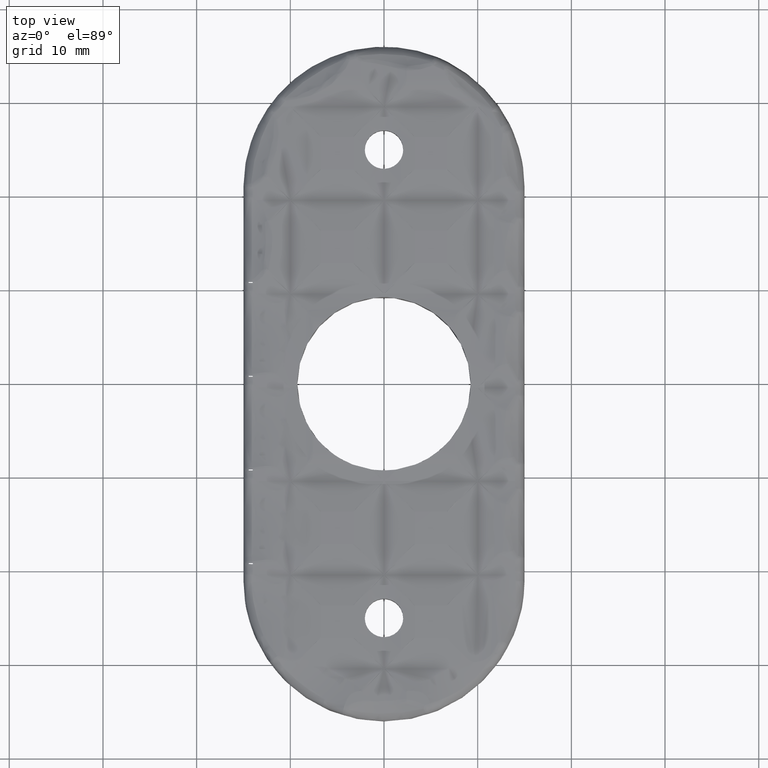
[diagram: clean part render]
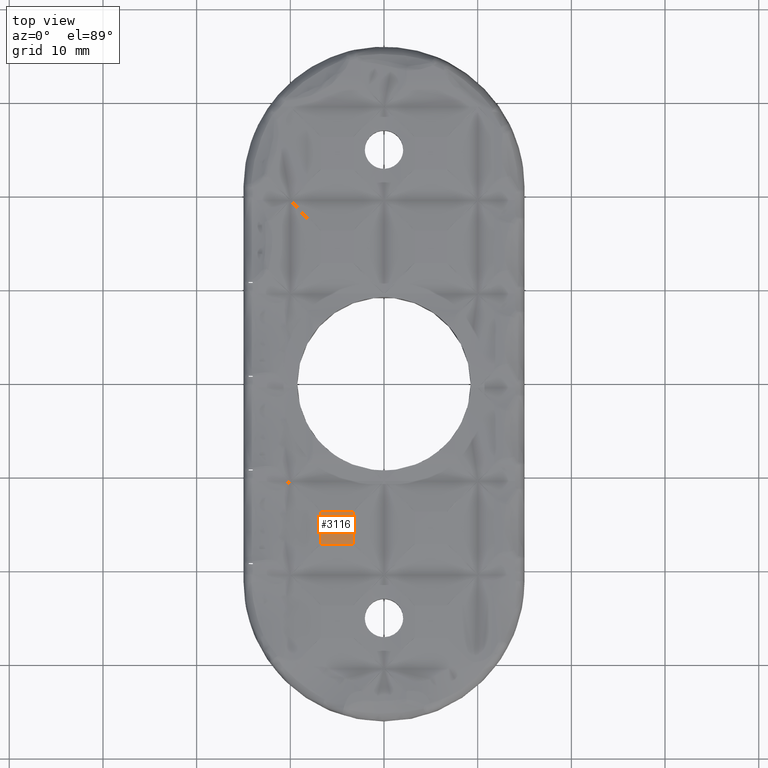
[diagram: same view with one face highlighted and labeled with its STEP entity id]
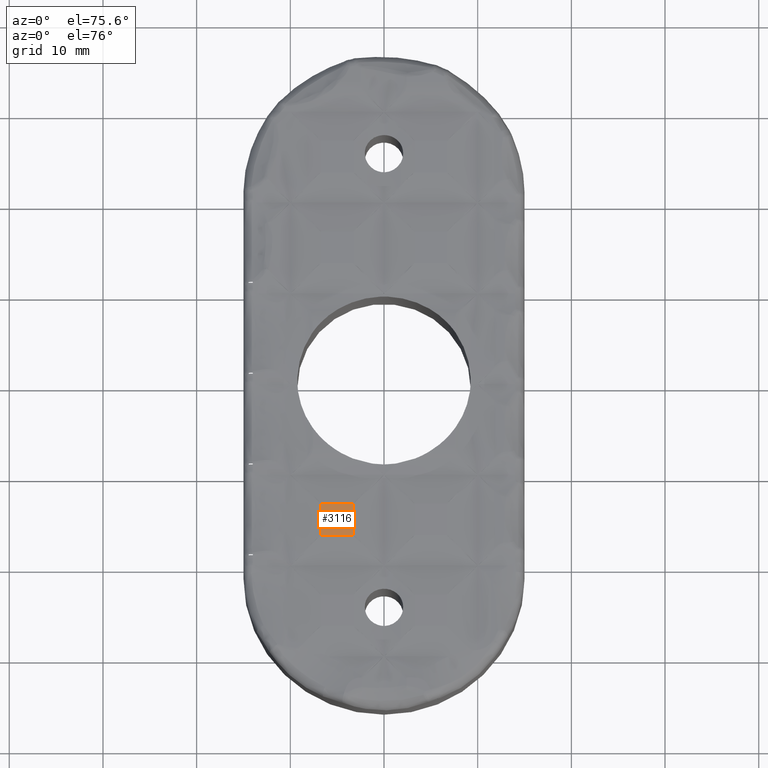
[diagram: same view with one face highlighted and labeled with its STEP entity id]
A machine part, top view. The second image highlights one B-rep face of the part: STEP entity #3116.
A second angle (auxiliary view) of the same face is appended — the face is thin or edge-on in the first view.
In plain terms, the highlighted planar face has unit normal (0, 0, 1).
Its self-contained STEP definition (entity closure, byte-faithful):
#908 = ORIENTED_EDGE ( 'NONE', *, *, #12815, .T. ) ;
#2133 = EDGE_LOOP ( 'NONE', ( #908, #15748, #8951, #20033 ) ) ;
#2752 = DIRECTION ( 'NONE',  ( 1.000000000000000000, 0.0000000000000000000, -0.0000000000000000000 ) ) ;
#3116 = ADVANCED_FACE ( 'NONE', ( #18883 ), #13587, .T. ) ;
#3199 = DIRECTION ( 'NONE',  ( 1.000000000000000000, 0.0000000000000000000, -0.0000000000000000000 ) ) ;
#4179 = VECTOR ( 'NONE', #21532, 1000.000000000000000 ) ;
#4283 = DIRECTION ( 'NONE',  ( -0.0000000000000000000, 1.000000000000000000, 0.0000000000000000000 ) ) ;
#4927 = CARTESIAN_POINT ( 'NONE',  ( -2.507294680206831200E-015, -17.10924587004310700, 3.500000000000000000 ) ) ;
#5788 = CARTESIAN_POINT ( 'NONE',  ( -6.726049786572795100, 20.99999999999999600, 3.500000000000000000 ) ) ;
#7199 = VECTOR ( 'NONE', #2752, 1000.000000000000000 ) ;
#7517 = LINE ( 'NONE', #5788, #24184 ) ;
#7894 = DIRECTION ( 'NONE',  ( 0.0000000000000000000, -1.000000000000000000, -0.0000000000000000000 ) ) ;
#8951 = ORIENTED_EDGE ( 'NONE', *, *, #24568, .T. ) ;
#11598 = AXIS2_PLACEMENT_3D ( 'NONE', #26085, #15666, #3199 ) ;
#12103 = LINE ( 'NONE', #4927, #7199 ) ;
#12564 = CARTESIAN_POINT ( 'NONE',  ( -3.273950213427205400, 20.99999999999999600, 3.500000000000000000 ) ) ;
#12815 = EDGE_CURVE ( 'NONE', #26176, #14794, #7517, .T. ) ;
#13587 = PLANE ( 'NONE',  #11598 ) ;
#13594 = CARTESIAN_POINT ( 'NONE',  ( -3.273950213427205400, -17.10924587004310700, 3.500000000000000000 ) ) ;
#14794 = VERTEX_POINT ( 'NONE', #26853 ) ;
#15047 = VECTOR ( 'NONE', #4283, 1000.000000000000000 ) ;
#15666 = DIRECTION ( 'NONE',  ( 0.0000000000000000000, 0.0000000000000000000, 1.000000000000000000 ) ) ;
#15675 = LINE ( 'NONE', #12564, #15047 ) ;
#15748 = ORIENTED_EDGE ( 'NONE', *, *, #24327, .T. ) ;
#18883 = FACE_OUTER_BOUND ( 'NONE', #2133, .T. ) ;
#19070 = VERTEX_POINT ( 'NONE', #13594 ) ;
#19433 = CARTESIAN_POINT ( 'NONE',  ( -15.00000000000000000, -13.65714629689749200, 3.499999999999998700 ) ) ;
#20033 = ORIENTED_EDGE ( 'NONE', *, *, #20109, .F. ) ;
#20109 = EDGE_CURVE ( 'NONE', #26176, #26070, #20803, .T. ) ;
#20362 = CARTESIAN_POINT ( 'NONE',  ( -6.726049786572795100, -13.65714629689749200, 3.499999999999999600 ) ) ;
#20803 = LINE ( 'NONE', #19433, #4179 ) ;
#21532 = DIRECTION ( 'NONE',  ( 1.000000000000000000, 0.0000000000000000000, 0.0000000000000000000 ) ) ;
#23934 = CARTESIAN_POINT ( 'NONE',  ( -3.273950213427211200, -13.65714629689749900, 3.499999999999999600 ) ) ;
#24184 = VECTOR ( 'NONE', #7894, 1000.000000000000000 ) ;
#24327 = EDGE_CURVE ( 'NONE', #14794, #19070, #12103, .T. ) ;
#24568 = EDGE_CURVE ( 'NONE', #19070, #26070, #15675, .T. ) ;
#26070 = VERTEX_POINT ( 'NONE', #23934 ) ;
#26085 = CARTESIAN_POINT ( 'NONE',  ( -2.507294680206831200E-015, 20.99999999999999600, 3.500000000000000000 ) ) ;
#26176 = VERTEX_POINT ( 'NONE', #20362 ) ;
#26853 = CARTESIAN_POINT ( 'NONE',  ( -6.726049786572798600, -17.10924587004311100, 3.499999999999999600 ) ) ;